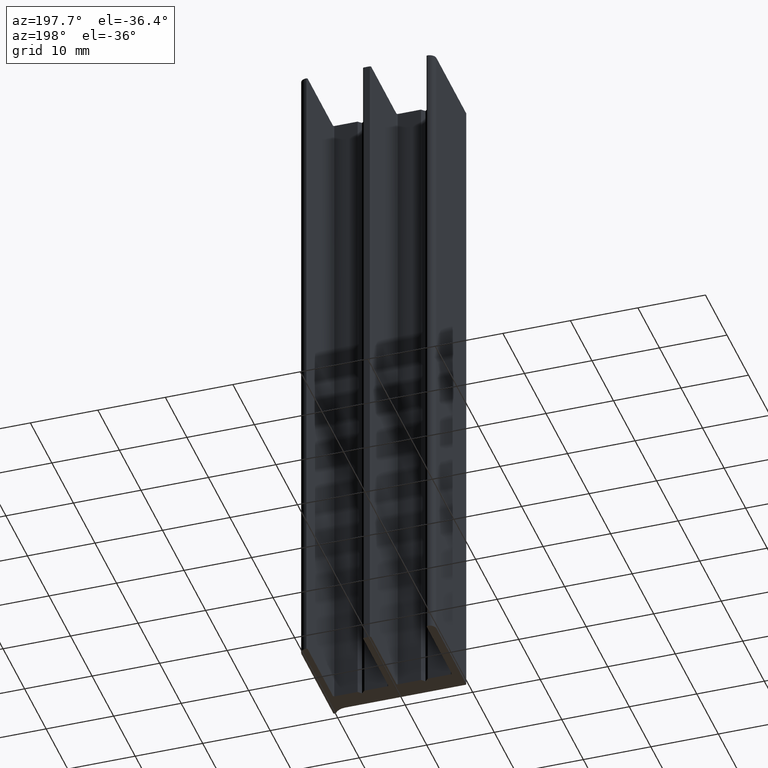
[diagram: clean part render]
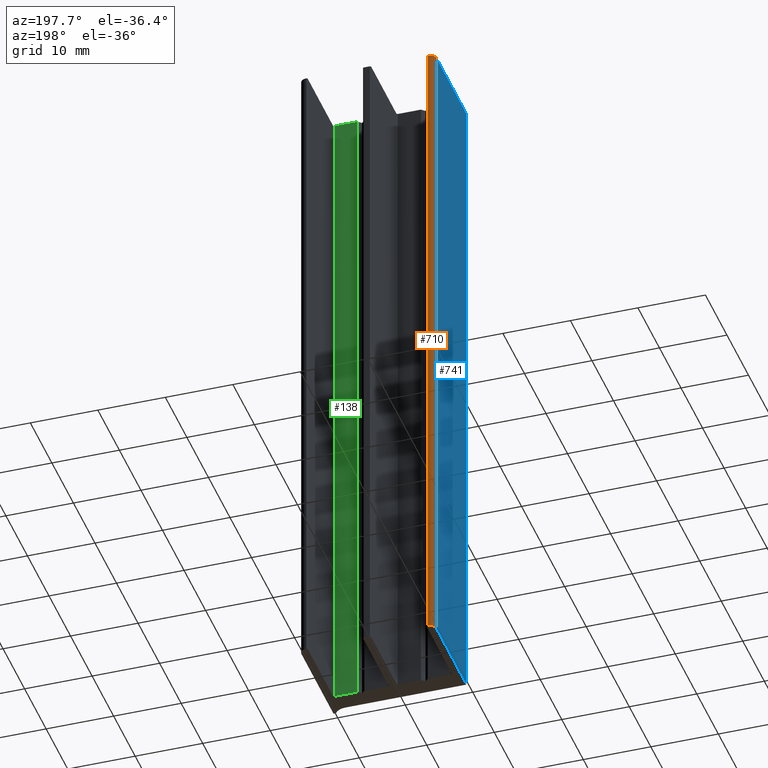
[diagram: same view with three faces highlighted in distinct colors, each labeled with its STEP entity id]
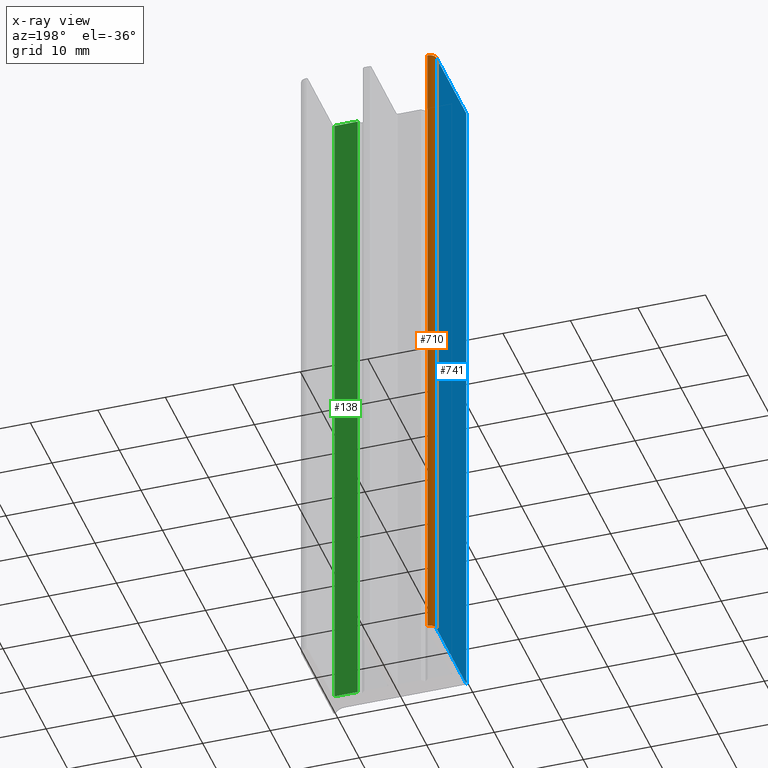
[diagram: x-ray of the same camera — body ghosted, the three highlighted faces saturated]
A machine part, auxiliary view with three faces highlighted in distinct colors.
The next image is the same camera in x-ray (body ghosted, the three faces saturated) — at least one of them is partly hidden behind the body in this view.
Their STEP definitions:

[orange] entity #710 — the highlighted cylindrical surface (edge-blend (fillet) strip) has radius 1 mm, axis along (0, 0, 1).
#650=CARTESIAN_POINT('',(-8.100000000000136,15.000000000000227,-100.0));
#651=VERTEX_POINT('',#650);
#659=CARTESIAN_POINT('',(-8.100000000000136,15.000000000000227,0.0));
#660=VERTEX_POINT('',#659);
#661=CARTESIAN_POINT('',(-8.100000000000136,15.000000000000227,-100.0));
#662=DIRECTION('',(0.0,0.0,1.0));
#663=VECTOR('',#662,100.0);
#664=LINE('',#661,#663);
#665=EDGE_CURVE('',#651,#660,#664,.T.);
#678=CARTESIAN_POINT('',(-8.100000000000136,14.000000000000227,-100.0));
#679=DIRECTION('',(0.0,0.0,1.0));
#680=DIRECTION('',(1.0,0.0,0.0));
#681=AXIS2_PLACEMENT_3D('',#678,#679,#680);
#682=CYLINDRICAL_SURFACE('',#681,1.0);
#683=CARTESIAN_POINT('',(-9.100000000000136,14.000000000000227,-100.0));
#684=VERTEX_POINT('',#683);
#685=CARTESIAN_POINT('',(-8.100000000000136,14.000000000000227,-100.0));
#686=DIRECTION('',(0.0,0.0,1.0));
#687=DIRECTION('',(1.0,0.0,0.0));
#688=AXIS2_PLACEMENT_3D('',#685,#686,#687);
#689=CIRCLE('',#688,1.0);
#690=EDGE_CURVE('',#651,#684,#689,.T.);
#691=ORIENTED_EDGE('',*,*,#690,.T.);
#692=CARTESIAN_POINT('',(-9.100000000000136,14.000000000000227,0.0));
#693=VERTEX_POINT('',#692);
#694=CARTESIAN_POINT('',(-9.100000000000136,14.000000000000227,-100.0));
#695=DIRECTION('',(0.0,0.0,1.0));
#696=VECTOR('',#695,100.0);
#697=LINE('',#694,#696);
#698=EDGE_CURVE('',#684,#693,#697,.T.);
#699=ORIENTED_EDGE('',*,*,#698,.T.);
#700=CARTESIAN_POINT('',(-8.100000000000136,14.000000000000227,0.0));
#701=DIRECTION('',(0.0,0.0,1.0));
#702=DIRECTION('',(1.0,0.0,0.0));
#703=AXIS2_PLACEMENT_3D('',#700,#701,#702);
#704=CIRCLE('',#703,1.0);
#705=EDGE_CURVE('',#660,#693,#704,.T.);
#706=ORIENTED_EDGE('',*,*,#705,.F.);
#707=ORIENTED_EDGE('',*,*,#665,.F.);
#708=EDGE_LOOP('',(#691,#699,#706,#707));
#709=FACE_OUTER_BOUND('',#708,.T.);
#710=ADVANCED_FACE('',(#709),#682,.T.);

[blue] entity #741 — the highlighted planar face has unit normal (-1, 0, 0).
#683=CARTESIAN_POINT('',(-9.100000000000136,14.000000000000227,-100.0));
#684=VERTEX_POINT('',#683);
#692=CARTESIAN_POINT('',(-9.100000000000136,14.000000000000227,0.0));
#693=VERTEX_POINT('',#692);
#694=CARTESIAN_POINT('',(-9.100000000000136,14.000000000000227,-100.0));
#695=DIRECTION('',(0.0,0.0,1.0));
#696=VECTOR('',#695,100.0);
#697=LINE('',#694,#696);
#698=EDGE_CURVE('',#684,#693,#697,.T.);
#711=CARTESIAN_POINT('',(-9.100000000000136,14.000000000000227,-100.0));
#712=DIRECTION('',(-1.0,0.0,0.0));
#713=DIRECTION('',(0.0,-1.0,0.0));
#714=AXIS2_PLACEMENT_3D('',#711,#712,#713);
#715=PLANE('',#714);
#716=CARTESIAN_POINT('',(-9.100000000000136,0.200000000000045,-100.0));
#717=VERTEX_POINT('',#716);
#718=CARTESIAN_POINT('',(-9.100000000000136,14.000000000000227,-100.0));
#719=DIRECTION('',(0.0,-1.0,0.0));
#720=VECTOR('',#719,13.800000000000182);
#721=LINE('',#718,#720);
#722=EDGE_CURVE('',#684,#717,#721,.T.);
#723=ORIENTED_EDGE('',*,*,#722,.T.);
#724=CARTESIAN_POINT('',(-9.100000000000136,0.200000000000045,0.0));
#725=VERTEX_POINT('',#724);
#726=CARTESIAN_POINT('',(-9.100000000000136,0.200000000000045,-100.0));
#727=DIRECTION('',(0.0,0.0,1.0));
#728=VECTOR('',#727,100.0);
#729=LINE('',#726,#728);
#730=EDGE_CURVE('',#717,#725,#729,.T.);
#731=ORIENTED_EDGE('',*,*,#730,.T.);
#732=CARTESIAN_POINT('',(-9.100000000000136,14.000000000000227,0.0));
#733=DIRECTION('',(0.0,-1.0,0.0));
#734=VECTOR('',#733,13.800000000000182);
#735=LINE('',#732,#734);
#736=EDGE_CURVE('',#693,#725,#735,.T.);
#737=ORIENTED_EDGE('',*,*,#736,.F.);
#738=ORIENTED_EDGE('',*,*,#698,.F.);
#739=EDGE_LOOP('',(#723,#731,#737,#738));
#740=FACE_OUTER_BOUND('',#739,.T.);
#741=ADVANCED_FACE('',(#740),#715,.T.);

[green] entity #138 — the highlighted planar face has unit normal (0, 1, 0).
#80=CARTESIAN_POINT('',(9.499999999999773,3.000000000000114,-100.0));
#81=VERTEX_POINT('',#80);
#89=CARTESIAN_POINT('',(9.499999999999773,3.000000000000114,0.0));
#90=VERTEX_POINT('',#89);
#91=CARTESIAN_POINT('',(9.499999999999773,3.000000000000114,-100.0));
#92=DIRECTION('',(0.0,0.0,1.0));
#93=VECTOR('',#92,100.0);
#94=LINE('',#91,#93);
#95=EDGE_CURVE('',#81,#90,#94,.T.);
#108=CARTESIAN_POINT('',(9.499999999999773,3.000000000000114,-100.0));
#109=DIRECTION('',(0.0,1.0,0.0));
#110=DIRECTION('',(-1.0,0.0,0.0));
#111=AXIS2_PLACEMENT_3D('',#108,#109,#110);
#112=PLANE('',#111);
#113=CARTESIAN_POINT('',(6.099999999999909,3.0,-100.0));
#114=VERTEX_POINT('',#113);
#115=CARTESIAN_POINT('',(9.499999999999773,3.000000000000114,-100.0));
#116=DIRECTION('',(-1.0,0.0,0.0));
#117=VECTOR('',#116,3.399999999999864);
#118=LINE('',#115,#117);
#119=EDGE_CURVE('',#81,#114,#118,.T.);
#120=ORIENTED_EDGE('',*,*,#119,.T.);
#121=CARTESIAN_POINT('',(6.099999999999909,3.0,0.0));
#122=VERTEX_POINT('',#121);
#123=CARTESIAN_POINT('',(6.099999999999909,3.0,-100.0));
#124=DIRECTION('',(0.0,0.0,1.0));
#125=VECTOR('',#124,100.0);
#126=LINE('',#123,#125);
#127=EDGE_CURVE('',#114,#122,#126,.T.);
#128=ORIENTED_EDGE('',*,*,#127,.T.);
#129=CARTESIAN_POINT('',(9.499999999999773,3.000000000000114,0.0));
#130=DIRECTION('',(-1.0,0.0,0.0));
#131=VECTOR('',#130,3.399999999999864);
#132=LINE('',#129,#131);
#133=EDGE_CURVE('',#90,#122,#132,.T.);
#134=ORIENTED_EDGE('',*,*,#133,.F.);
#135=ORIENTED_EDGE('',*,*,#95,.F.);
#136=EDGE_LOOP('',(#120,#128,#134,#135));
#137=FACE_OUTER_BOUND('',#136,.T.);
#138=ADVANCED_FACE('',(#137),#112,.T.);